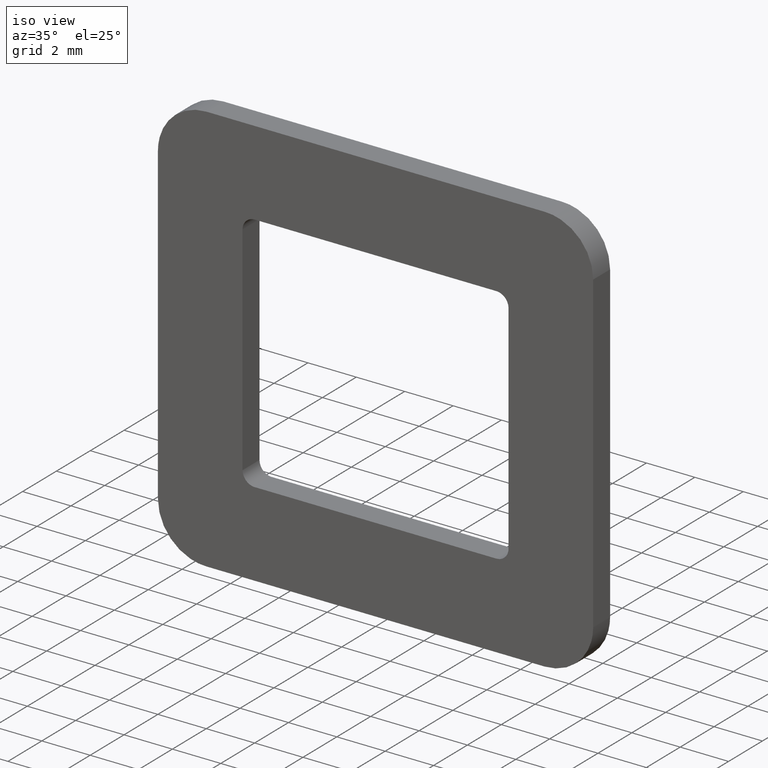
[diagram: clean part render]
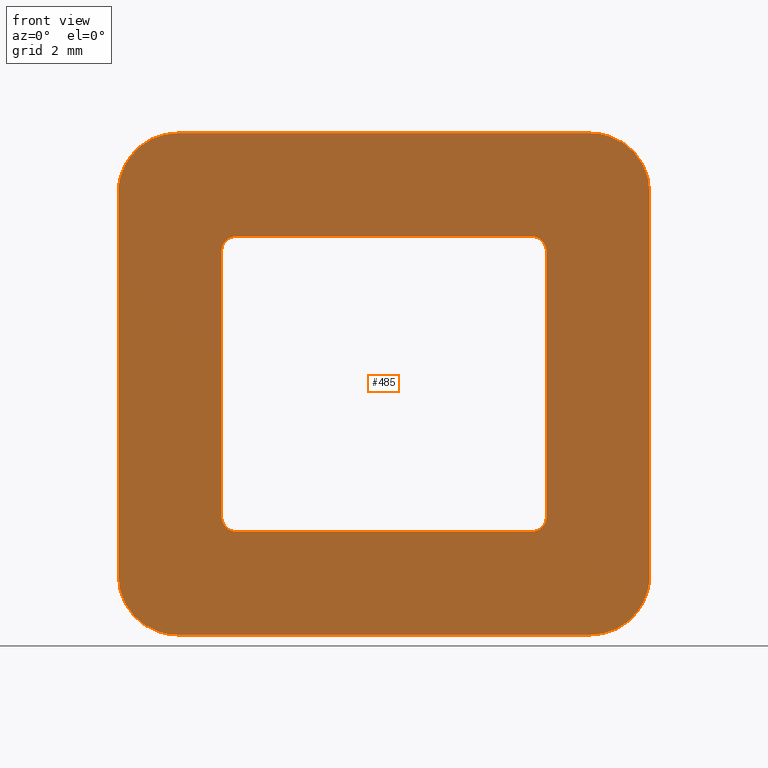
[diagram: tour spotlight — one face highlighted and labeled with its STEP entity id]
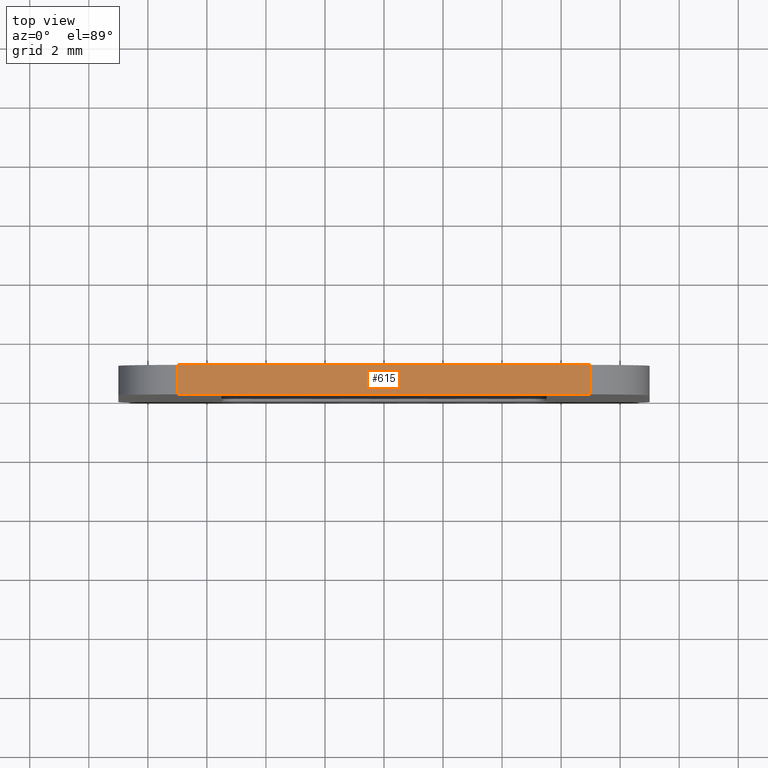
[diagram: tour spotlight — one face highlighted and labeled with its STEP entity id]
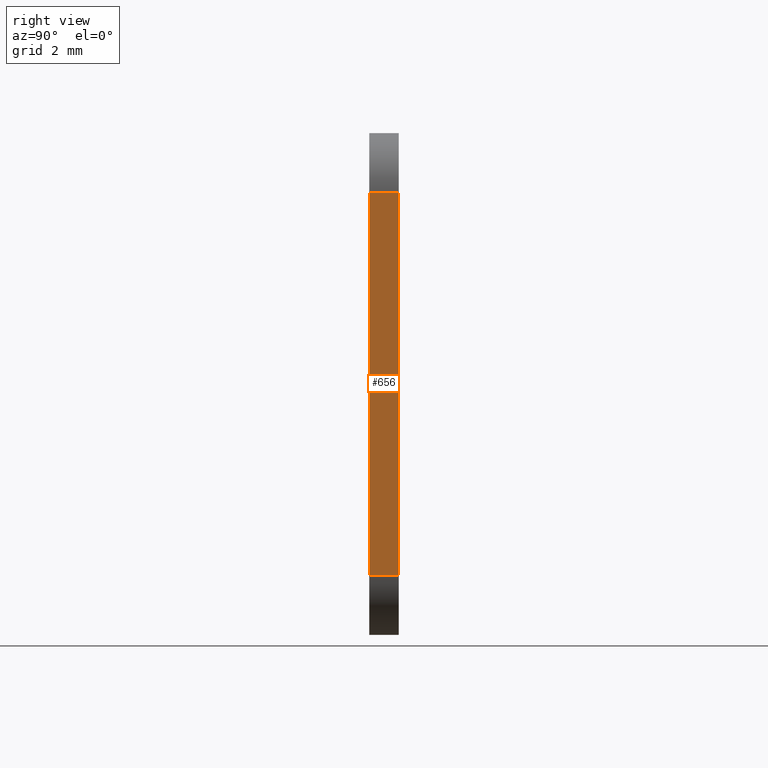
[diagram: tour spotlight — one face highlighted and labeled with its STEP entity id]
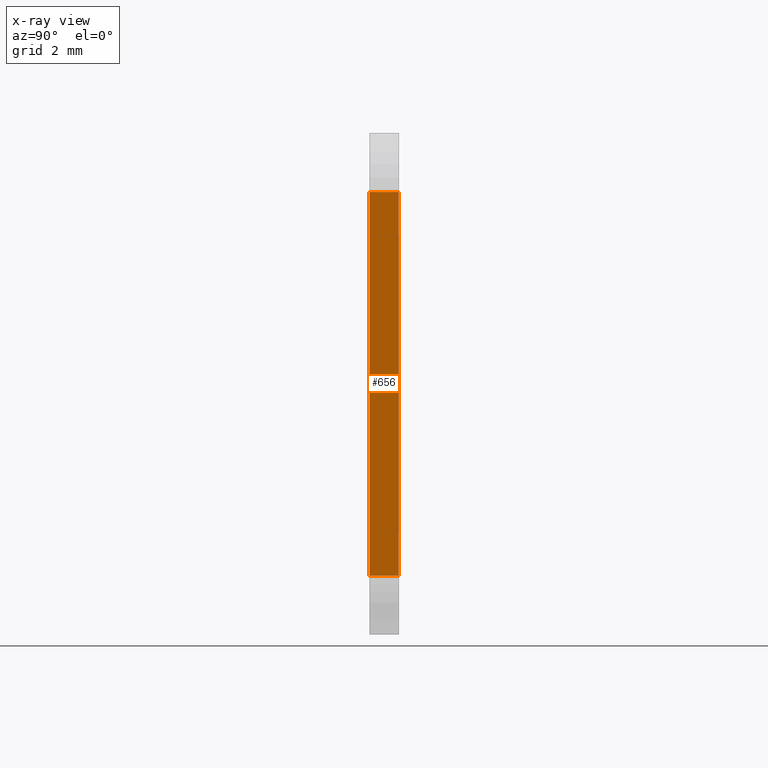
[diagram: x-ray of the same camera — body ghosted, this tour face saturated]
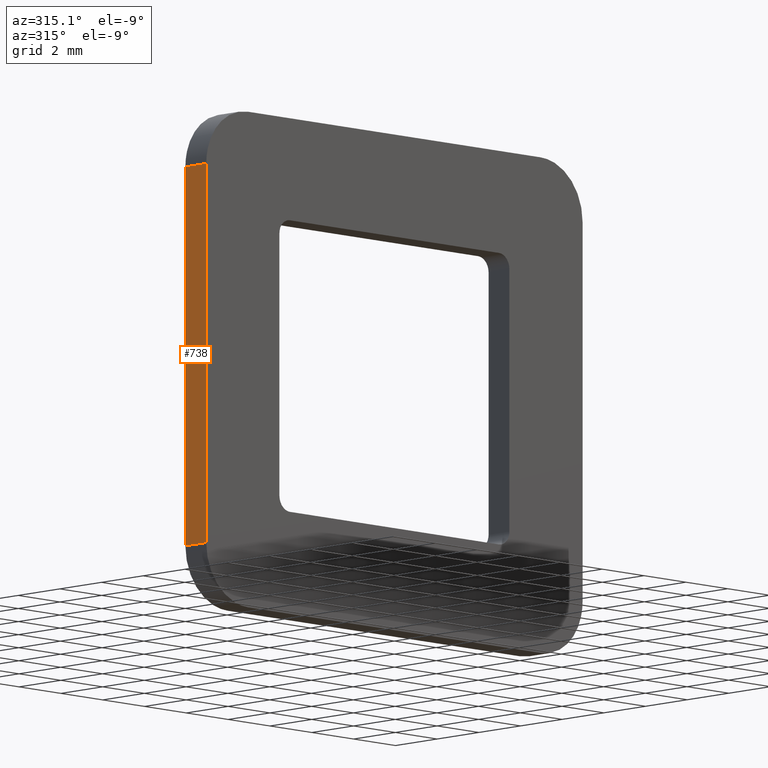
[diagram: tour spotlight — one face highlighted and labeled with its STEP entity id]
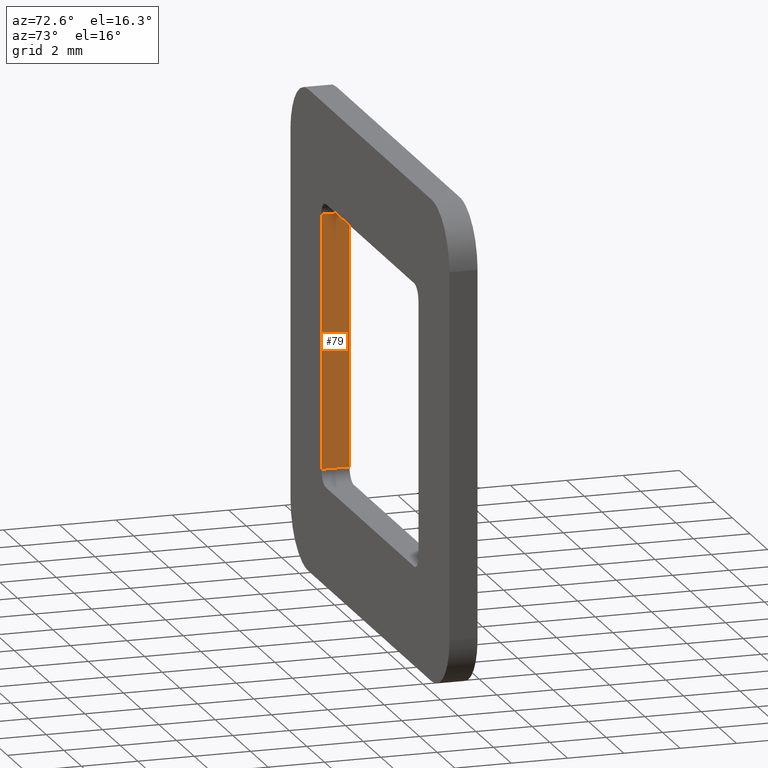
[diagram: tour spotlight — one face highlighted and labeled with its STEP entity id]
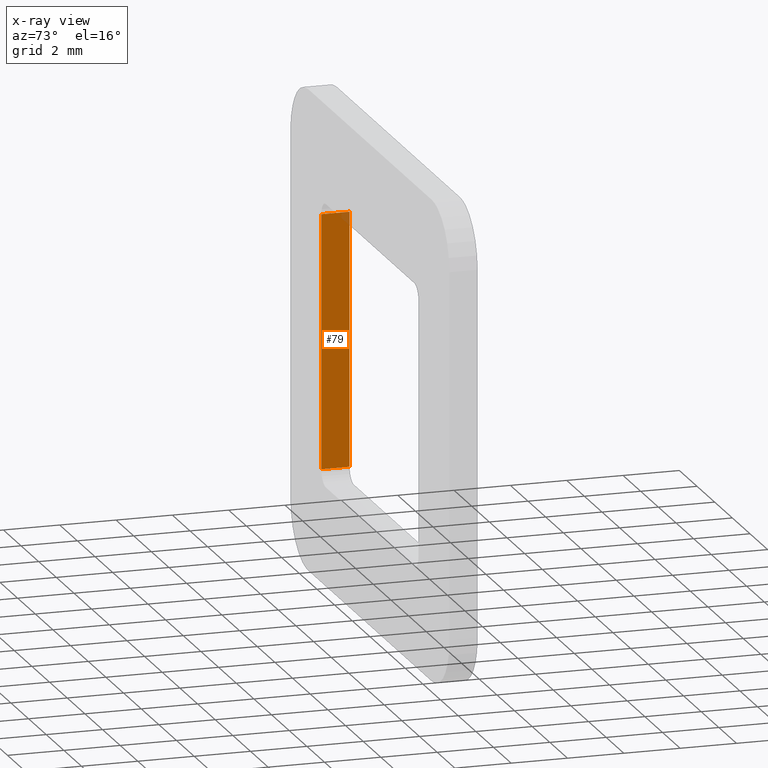
[diagram: x-ray of the same camera — body ghosted, this tour face saturated]
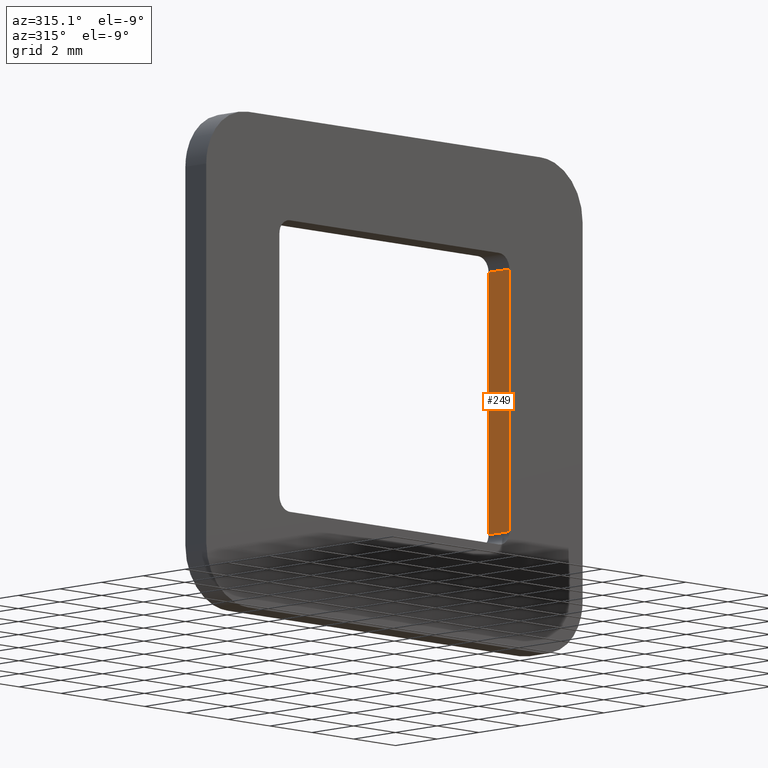
[diagram: tour spotlight — one face highlighted and labeled with its STEP entity id]
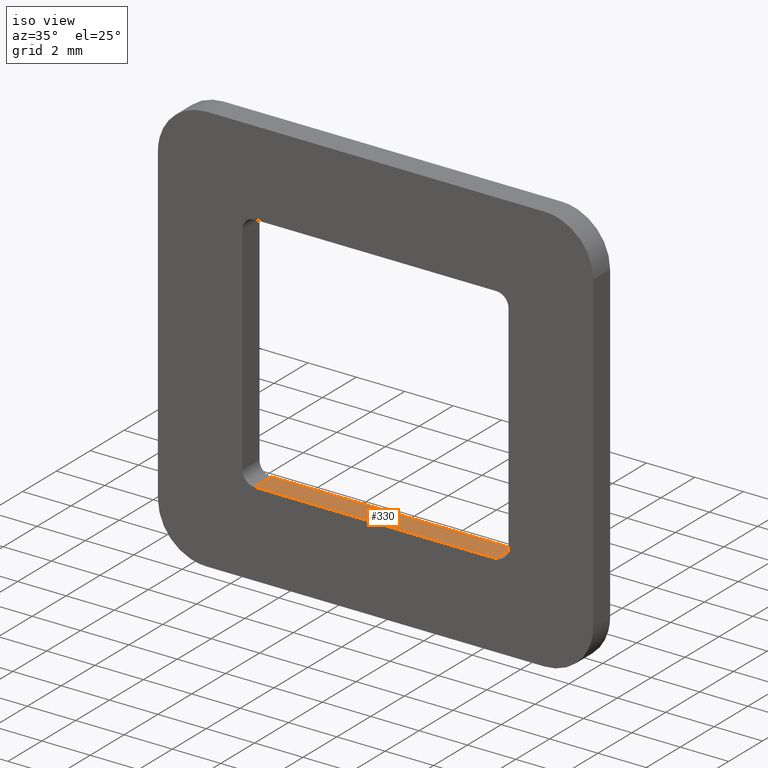
[diagram: tour spotlight — one face highlighted and labeled with its STEP entity id]
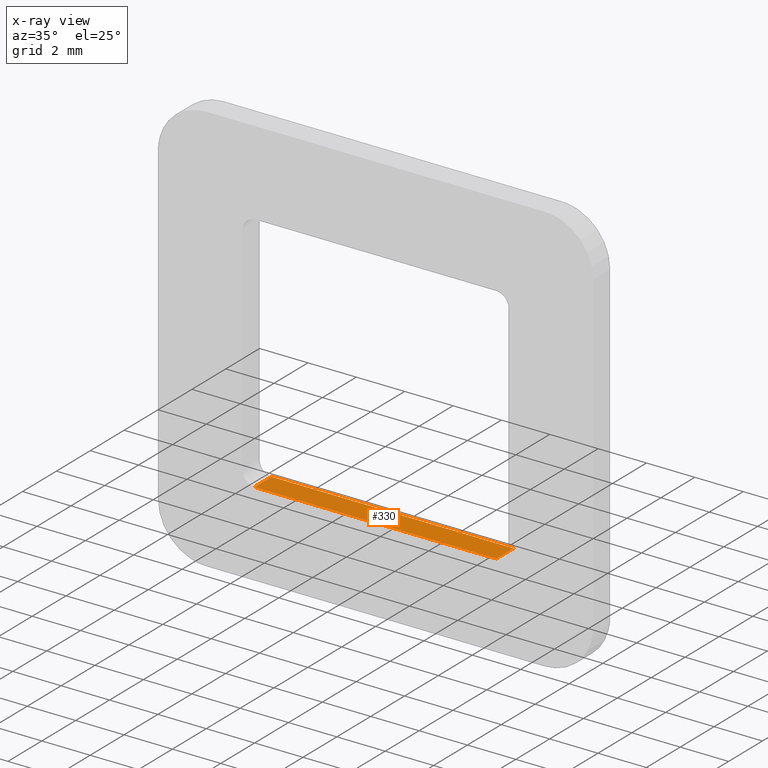
[diagram: x-ray of the same camera — body ghosted, this tour face saturated]
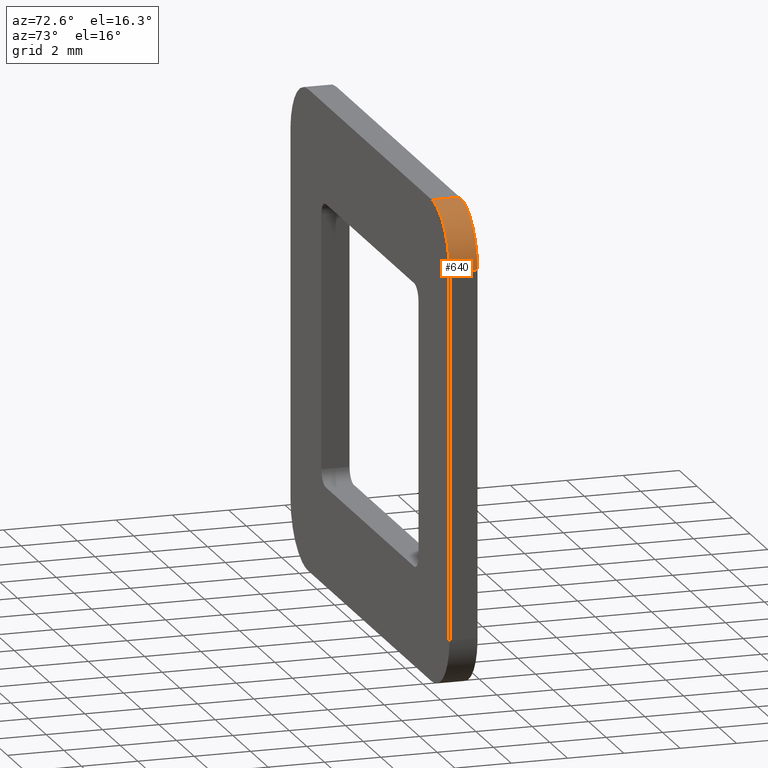
[diagram: tour spotlight — one face highlighted and labeled with its STEP entity id]
A machine part: a face-by-face anatomy tour. The part has 18 B-rep faces; the first image is the clean iso view, then the 8 largest visible faces are spotlighted one at a time (largest first), each with its STEP entity span.

Face 1 — front view, entity #485. In plain terms, the highlighted face is a freeform B-spline surface patch.
Definition (entity closure, byte-faithful):
#49=CARTESIAN_POINT('',(-5.500000000000000,0.0,4.499999956366790));
#50=VERTEX_POINT('',#49);
#51=CARTESIAN_POINT('',(-5.500000000000000,0.0,-4.500000000000000));
#52=VERTEX_POINT('',#51);
#53=CARTESIAN_POINT('',(-5.500000000000000,0.0,4.499999956366790));
#54=CARTESIAN_POINT('',(-5.500000000000000,0.0,-4.500000000000000));
#55=QUASI_UNIFORM_CURVE('',1,(#53,#54),.UNSPECIFIED.,.F.,.U.);
#56=EDGE_CURVE('',#50,#52,#55,.T.);
#94=CARTESIAN_POINT('',(-5.0,0.0,5.0));
#95=VERTEX_POINT('',#94);
#96=CARTESIAN_POINT('',(-5.0,0.0,4.999999999999999));
#97=CARTESIAN_POINT('',(-5.207106793966419,0.0,4.999999999999999));
#98=CARTESIAN_POINT('',(-5.353553406019943,0.0,4.853553375166603));
#99=CARTESIAN_POINT('',(-5.500000018073468,0.0,4.707106750333208));
#100=CARTESIAN_POINT('',(-5.499999999999998,0.0,4.499999956366790));
#108=(BOUNDED_CURVE()B_SPLINE_CURVE(2,(#96,#97,#98,#99,#100),.UNSPECIFIED.,.F.,.U.)B_SPLINE_CURVE_WITH_KNOTS((3,2,3),(0.0,0.500000000000000,1.0),.UNSPECIFIED.)CURVE()GEOMETRIC_REPRESENTATION_ITEM()RATIONAL_B_SPLINE_CURVE((1.0,0.923879524162433,1.0,0.923879524162433,1.0))REPRESENTATION_ITEM(''));
#109=EDGE_CURVE('',#95,#50,#108,.T.);
#142=CARTESIAN_POINT('',(4.999999973820060,0.0,5.0));
#143=VERTEX_POINT('',#142);
#144=CARTESIAN_POINT('',(4.999999973820060,0.0,5.0));
#145=CARTESIAN_POINT('',(-5.0,0.0,5.0));
#146=QUASI_UNIFORM_CURVE('',1,(#144,#145),.UNSPECIFIED.,.F.,.U.);
#147=EDGE_CURVE('',#143,#95,#146,.T.);
#179=CARTESIAN_POINT('',(5.500000000000000,0.0,4.500000000000000));
#180=VERTEX_POINT('',#179);
#181=CARTESIAN_POINT('',(5.500000000000000,0.0,4.500000000000000));
#182=CARTESIAN_POINT('',(5.500000000000000,0.0,4.707106788854474));
#183=CARTESIAN_POINT('',(5.353553381337267,0.0,4.853553399849280));
#184=CARTESIAN_POINT('',(5.207106762674534,0.0,5.000000010844087));
#185=CARTESIAN_POINT('',(4.999999973820060,0.0,4.999999999999999));
#193=(BOUNDED_CURVE()B_SPLINE_CURVE(2,(#181,#182,#183,#184,#185),.UNSPECIFIED.,.F.,.U.)B_SPLINE_CURVE_WITH_KNOTS((3,2,3),(0.0,0.500000000000000,1.0),.UNSPECIFIED.)CURVE()GEOMETRIC_REPRESENTATION_ITEM()RATIONAL_B_SPLINE_CURVE((1.0,0.923879527501972,1.0,0.923879527501972,1.0))REPRESENTATION_ITEM(''));
#194=EDGE_CURVE('',#180,#143,#193,.T.);
#227=CARTESIAN_POINT('',(5.500000000000000,0.0,-4.500000000000000));
#228=VERTEX_POINT('',#227);
#229=CARTESIAN_POINT('',(5.500000000000000,0.0,-4.500000000000000));
#230=CARTESIAN_POINT('',(5.500000000000000,0.0,4.500000000000000));
#231=QUASI_UNIFORM_CURVE('',1,(#229,#230),.UNSPECIFIED.,.F.,.U.);
#232=EDGE_CURVE('',#228,#180,#231,.T.);
#264=CARTESIAN_POINT('',(5.0,0.0,-5.0));
#265=VERTEX_POINT('',#264);
#266=CARTESIAN_POINT('',(5.0,0.0,-4.999999999999999));
#267=CARTESIAN_POINT('',(5.500000000000001,0.0,-4.999999999999998));
#268=CARTESIAN_POINT('',(5.500000000000000,0.0,-4.500000000000000));
#276=(BOUNDED_CURVE()B_SPLINE_CURVE(2,(#266,#267,#268),.UNSPECIFIED.,.F.,.U.)CURVE()GEOMETRIC_REPRESENTATION_ITEM()QUASI_UNIFORM_CURVE()RATIONAL_B_SPLINE_CURVE((1.0,0.707106781186548,1.0))REPRESENTATION_ITEM(''));
#277=EDGE_CURVE('',#265,#228,#276,.T.);
#308=CARTESIAN_POINT('',(-5.0,0.0,-5.0));
#309=VERTEX_POINT('',#308);
#310=CARTESIAN_POINT('',(-5.0,0.0,-5.0));
#311=CARTESIAN_POINT('',(5.0,0.0,-5.0));
#312=QUASI_UNIFORM_CURVE('',1,(#310,#311),.UNSPECIFIED.,.F.,.U.);
#313=EDGE_CURVE('',#309,#265,#312,.T.);
#345=CARTESIAN_POINT('',(-5.500000000000000,0.0,-4.500000000000000));
#346=CARTESIAN_POINT('',(-5.500000000000001,0.0,-4.999999999999998));
#347=CARTESIAN_POINT('',(-5.0,0.0,-4.999999999999999));
#355=(BOUNDED_CURVE()B_SPLINE_CURVE(2,(#345,#346,#347),.UNSPECIFIED.,.F.,.U.)CURVE()GEOMETRIC_REPRESENTATION_ITEM()QUASI_UNIFORM_CURVE()RATIONAL_B_SPLINE_CURVE((1.0,0.707106781186548,1.0))REPRESENTATION_ITEM(''));
#356=EDGE_CURVE('',#52,#309,#355,.T.);
#376=CARTESIAN_POINT('',(-9.899099965112507,0.0,9.349149967050700));
#377=CARTESIAN_POINT('',(9.899100447910129,0.0,9.349149967050700));
#378=CARTESIAN_POINT('',(-9.899099965112507,0.0,-9.349150423026234));
#379=CARTESIAN_POINT('',(9.899100447910129,0.0,-9.349150423026234));
#380=B_SPLINE_SURFACE_WITH_KNOTS('',1,1,((#376,#378),(#377,#379)),.UNSPECIFIED.,.F.,.F.,.U.,(2,2),(2,2),(0.0,19.798200413022631),(0.0,18.698300390076930),.UNSPECIFIED.);
#381=CARTESIAN_POINT('',(-7.0,0.0,8.500000000000000));
#382=VERTEX_POINT('',#381);
#383=CARTESIAN_POINT('',(-9.0,0.0,6.500000000000000));
#384=VERTEX_POINT('',#383);
#385=CARTESIAN_POINT('',(-7.0,0.0,8.500000000000000));
#386=CARTESIAN_POINT('',(-9.000000000000002,0.0,8.500000000000002));
#387=CARTESIAN_POINT('',(-9.000000000000002,0.0,6.500000000000000));
#395=(BOUNDED_CURVE()B_SPLINE_CURVE(2,(#385,#386,#387),.UNSPECIFIED.,.F.,.U.)CURVE()GEOMETRIC_REPRESENTATION_ITEM()QUASI_UNIFORM_CURVE()RATIONAL_B_SPLINE_CURVE((1.0,0.707106781186548,1.0))REPRESENTATION_ITEM(''));
#396=EDGE_CURVE('',#382,#384,#395,.T.);
#397=ORIENTED_EDGE('',*,*,#396,.T.);
#398=CARTESIAN_POINT('',(-9.0,0.0,-6.500000000000000));
#399=VERTEX_POINT('',#398);
#400=CARTESIAN_POINT('',(-9.0,0.0,6.500000000000000));
#401=CARTESIAN_POINT('',(-9.0,0.0,-6.500000000000000));
#402=QUASI_UNIFORM_CURVE('',1,(#400,#401),.UNSPECIFIED.,.F.,.U.);
#403=EDGE_CURVE('',#384,#399,#402,.T.);
#404=ORIENTED_EDGE('',*,*,#403,.T.);
#405=CARTESIAN_POINT('',(-6.999999965093420,0.0,-8.500000000000000));
#406=VERTEX_POINT('',#405);
#407=CARTESIAN_POINT('',(-9.000000000000002,0.0,-6.500000000000000));
#408=CARTESIAN_POINT('',(-9.000000000000002,0.0,-7.328427134970091));
#409=CARTESIAN_POINT('',(-8.414213550031755,0.0,-7.914213574714435));
#410=CARTESIAN_POINT('',(-7.828427100063511,0.0,-8.500000014458779));
#411=CARTESIAN_POINT('',(-6.999999965093421,0.0,-8.499999999999998));
#419=(BOUNDED_CURVE()B_SPLINE_CURVE(2,(#407,#408,#409,#410,#411),.UNSPECIFIED.,.F.,.U.)B_SPLINE_CURVE_WITH_KNOTS((3,2,3),(0.0,0.500000000000000,1.0),.UNSPECIFIED.)CURVE()GEOMETRIC_REPRESENTATION_ITEM()RATIONAL_B_SPLINE_CURVE((1.0,0.923879530841516,1.0,0.923879530841516,1.0))REPRESENTATION_ITEM(''));
#420=EDGE_CURVE('',#399,#406,#419,.T.);
#421=ORIENTED_EDGE('',*,*,#420,.T.);
#422=CARTESIAN_POINT('',(7.0,0.0,-8.500000000000000));
#423=VERTEX_POINT('',#422);
#424=CARTESIAN_POINT('',(-6.999999965093420,0.0,-8.500000000000000));
#425=CARTESIAN_POINT('',(7.0,0.0,-8.500000000000000));
#426=QUASI_UNIFORM_CURVE('',1,(#424,#425),.UNSPECIFIED.,.F.,.U.);
#427=EDGE_CURVE('',#406,#423,#426,.T.);
#428=ORIENTED_EDGE('',*,*,#427,.T.);
#429=CARTESIAN_POINT('',(9.0,0.0,-6.500000000000000));
#430=VERTEX_POINT('',#429);
#431=CARTESIAN_POINT('',(7.0,0.0,-8.500000000000000));
#432=CARTESIAN_POINT('',(9.000000000000002,0.0,-8.500000000000002));
#433=CARTESIAN_POINT('',(9.000000000000002,0.0,-6.500000000000000));
#441=(BOUNDED_CURVE()B_SPLINE_CURVE(2,(#431,#432,#433),.UNSPECIFIED.,.F.,.U.)CURVE()GEOMETRIC_REPRESENTATION_ITEM()QUASI_UNIFORM_CURVE()RATIONAL_B_SPLINE_CURVE((1.0,0.707106781186548,1.0))REPRESENTATION_ITEM(''));
#442=EDGE_CURVE('',#423,#430,#441,.T.);
#443=ORIENTED_EDGE('',*,*,#442,.T.);
#444=CARTESIAN_POINT('',(9.0,0.0,6.500000000000000));
#445=VERTEX_POINT('',#444);
#446=CARTESIAN_POINT('',(9.0,0.0,-6.500000000000000));
#447=CARTESIAN_POINT('',(9.0,0.0,6.500000000000000));
#448=QUASI_UNIFORM_CURVE('',1,(#446,#447),.UNSPECIFIED.,.F.,.U.);
#449=EDGE_CURVE('',#430,#445,#448,.T.);
#450=ORIENTED_EDGE('',*,*,#449,.T.);
#451=CARTESIAN_POINT('',(6.999999895280260,0.0,8.500000000000000));
#452=VERTEX_POINT('',#451);
#453=CARTESIAN_POINT('',(9.000000000000002,0.0,6.500000000000000));
#454=CARTESIAN_POINT('',(9.000000000000002,0.0,7.328427155417892));
#455=CARTESIAN_POINT('',(8.414213525349075,0.0,7.914213599397113));
#456=CARTESIAN_POINT('',(7.828427050698152,0.0,8.500000043376335));
#457=CARTESIAN_POINT('',(6.999999895280261,0.0,8.499999999999996));
#465=(BOUNDED_CURVE()B_SPLINE_CURVE(2,(#453,#454,#455,#456,#457),.UNSPECIFIED.,.F.,.U.)B_SPLINE_CURVE_WITH_KNOTS((3,2,3),(0.0,0.500000000000000,1.0),.UNSPECIFIED.)CURVE()GEOMETRIC_REPRESENTATION_ITEM()RATIONAL_B_SPLINE_CURVE((1.0,0.923879527501973,1.0,0.923879527501973,1.0))REPRESENTATION_ITEM(''));
#466=EDGE_CURVE('',#445,#452,#465,.T.);
#467=ORIENTED_EDGE('',*,*,#466,.T.);
#468=CARTESIAN_POINT('',(6.999999895280260,0.0,8.500000000000000));
#469=CARTESIAN_POINT('',(-7.0,0.0,8.500000000000000));
#470=QUASI_UNIFORM_CURVE('',1,(#468,#469),.UNSPECIFIED.,.F.,.U.);
#471=EDGE_CURVE('',#452,#382,#470,.T.);
#472=ORIENTED_EDGE('',*,*,#471,.T.);
#473=EDGE_LOOP('',(#397,#404,#421,#428,#443,#450,#467,#472));
#474=FACE_OUTER_BOUND('',#473,.T.);
#475=ORIENTED_EDGE('',*,*,#356,.F.);
#476=ORIENTED_EDGE('',*,*,#56,.F.);
#477=ORIENTED_EDGE('',*,*,#109,.F.);
#478=ORIENTED_EDGE('',*,*,#147,.F.);
#479=ORIENTED_EDGE('',*,*,#194,.F.);
#480=ORIENTED_EDGE('',*,*,#232,.F.);
#481=ORIENTED_EDGE('',*,*,#277,.F.);
#482=ORIENTED_EDGE('',*,*,#313,.F.);
#483=EDGE_LOOP('',(#475,#476,#477,#478,#479,#480,#481,#482));
#484=FACE_BOUND('',#483,.T.);
#485=ADVANCED_FACE('',(#474,#484),#380,.F.);

Face 2 — top view, entity #615. In plain terms, the highlighted face is a freeform B-spline surface patch.
Definition (entity closure, byte-faithful):
#381=CARTESIAN_POINT('',(-7.0,0.0,8.500000000000000));
#382=VERTEX_POINT('',#381);
#451=CARTESIAN_POINT('',(6.999999895280260,0.0,8.500000000000000));
#452=VERTEX_POINT('',#451);
#468=CARTESIAN_POINT('',(6.999999895280260,0.0,8.500000000000000));
#469=CARTESIAN_POINT('',(-7.0,0.0,8.500000000000000));
#470=QUASI_UNIFORM_CURVE('',1,(#468,#469),.UNSPECIFIED.,.F.,.U.);
#471=EDGE_CURVE('',#452,#382,#470,.T.);
#491=CARTESIAN_POINT('',(-7.0,1.0,8.500000000000000));
#492=VERTEX_POINT('',#491);
#508=CARTESIAN_POINT('',(6.999999895280260,1.0,8.500000000000000));
#509=VERTEX_POINT('',#508);
#510=CARTESIAN_POINT('',(6.999999895280260,1.0,8.500000000000000));
#511=CARTESIAN_POINT('',(-7.0,1.0,8.500000000000000));
#512=QUASI_UNIFORM_CURVE('',1,(#510,#511),.UNSPECIFIED.,.F.,.U.);
#513=EDGE_CURVE('',#509,#492,#512,.T.);
#596=CARTESIAN_POINT('',(-7.699299967634536,-0.049949998061806,8.500000000000000));
#597=CARTESIAN_POINT('',(7.699300238424049,-0.049949998061806,8.500000000000000));
#598=CARTESIAN_POINT('',(-7.699299967634536,1.049950024883896,8.500000000000000));
#599=CARTESIAN_POINT('',(7.699300238424049,1.049950024883896,8.500000000000000));
#600=B_SPLINE_SURFACE_WITH_KNOTS('',1,1,((#596,#598),(#597,#599)),.UNSPECIFIED.,.F.,.F.,.U.,(2,2),(2,2),(0.0,15.398600206058591),(0.041708334948495,0.958291687403247),.UNSPECIFIED.);
#601=ORIENTED_EDGE('',*,*,#471,.F.);
#602=CARTESIAN_POINT('',(6.999999895280260,1.0,8.500000000000000));
#603=CARTESIAN_POINT('',(6.999999895280260,0.0,8.500000000000000));
#604=QUASI_UNIFORM_CURVE('',1,(#602,#603),.UNSPECIFIED.,.F.,.U.);
#605=EDGE_CURVE('',#509,#452,#604,.T.);
#606=ORIENTED_EDGE('',*,*,#605,.F.);
#607=ORIENTED_EDGE('',*,*,#513,.T.);
#608=CARTESIAN_POINT('',(-7.0,1.0,8.500000000000000));
#609=CARTESIAN_POINT('',(-7.0,0.0,8.500000000000000));
#610=QUASI_UNIFORM_CURVE('',1,(#608,#609),.UNSPECIFIED.,.F.,.U.);
#611=EDGE_CURVE('',#492,#382,#610,.T.);
#612=ORIENTED_EDGE('',*,*,#611,.T.);
#613=EDGE_LOOP('',(#601,#606,#607,#612));
#614=FACE_OUTER_BOUND('',#613,.T.);
#615=ADVANCED_FACE('',(#614),#600,.T.);

Face 3 — right view, entity #656. An x-ray twin of the same camera follows (body ghosted, this face saturated) — the face is partly hidden behind the body. In plain terms, the highlighted face is a freeform B-spline surface patch.
Definition (entity closure, byte-faithful):
#429=CARTESIAN_POINT('',(9.0,0.0,-6.500000000000000));
#430=VERTEX_POINT('',#429);
#444=CARTESIAN_POINT('',(9.0,0.0,6.500000000000000));
#445=VERTEX_POINT('',#444);
#446=CARTESIAN_POINT('',(9.0,0.0,-6.500000000000000));
#447=CARTESIAN_POINT('',(9.0,0.0,6.500000000000000));
#448=QUASI_UNIFORM_CURVE('',1,(#446,#447),.UNSPECIFIED.,.F.,.U.);
#449=EDGE_CURVE('',#430,#445,#448,.T.);
#515=CARTESIAN_POINT('',(9.0,1.0,6.500000000000000));
#516=VERTEX_POINT('',#515);
#532=CARTESIAN_POINT('',(9.0,1.0,-6.500000000000000));
#533=VERTEX_POINT('',#532);
#534=CARTESIAN_POINT('',(9.0,1.0,-6.500000000000000));
#535=CARTESIAN_POINT('',(9.0,1.0,6.500000000000000));
#536=QUASI_UNIFORM_CURVE('',1,(#534,#535),.UNSPECIFIED.,.F.,.U.);
#537=EDGE_CURVE('',#533,#516,#536,.T.);
#631=CARTESIAN_POINT('',(9.0,1.0,6.500000000000000));
#632=CARTESIAN_POINT('',(9.0,0.0,6.500000000000000));
#633=QUASI_UNIFORM_CURVE('',1,(#631,#632),.UNSPECIFIED.,.F.,.U.);
#634=EDGE_CURVE('',#516,#445,#633,.T.);
#641=CARTESIAN_POINT('',(9.0,-0.049949998061806,7.149349974803478));
#642=CARTESIAN_POINT('',(9.0,-0.049949998061806,-7.149350323490650));
#643=CARTESIAN_POINT('',(9.0,1.049950024883896,7.149349974803478));
#644=CARTESIAN_POINT('',(9.0,1.049950024883896,-7.149350323490651));
#645=B_SPLINE_SURFACE_WITH_KNOTS('',1,1,((#641,#643),(#642,#644)),.UNSPECIFIED.,.F.,.F.,.U.,(2,2),(2,2),(0.0,14.298700298294129),(0.041708334948495,0.958291687403247),.UNSPECIFIED.);
#646=ORIENTED_EDGE('',*,*,#449,.F.);
#647=CARTESIAN_POINT('',(9.0,1.0,-6.500000000000000));
#648=CARTESIAN_POINT('',(9.0,0.0,-6.500000000000000));
#649=QUASI_UNIFORM_CURVE('',1,(#647,#648),.UNSPECIFIED.,.F.,.U.);
#650=EDGE_CURVE('',#533,#430,#649,.T.);
#651=ORIENTED_EDGE('',*,*,#650,.F.);
#652=ORIENTED_EDGE('',*,*,#537,.T.);
#653=ORIENTED_EDGE('',*,*,#634,.T.);
#654=EDGE_LOOP('',(#646,#651,#652,#653));
#655=FACE_OUTER_BOUND('',#654,.T.);
#656=ADVANCED_FACE('',(#655),#645,.T.);

Face 4 — auxiliary view, entity #738. In plain terms, the highlighted face is a freeform B-spline surface patch.
Definition (entity closure, byte-faithful):
#383=CARTESIAN_POINT('',(-9.0,0.0,6.500000000000000));
#384=VERTEX_POINT('',#383);
#398=CARTESIAN_POINT('',(-9.0,0.0,-6.500000000000000));
#399=VERTEX_POINT('',#398);
#400=CARTESIAN_POINT('',(-9.0,0.0,6.500000000000000));
#401=CARTESIAN_POINT('',(-9.0,0.0,-6.500000000000000));
#402=QUASI_UNIFORM_CURVE('',1,(#400,#401),.UNSPECIFIED.,.F.,.U.);
#403=EDGE_CURVE('',#384,#399,#402,.T.);
#493=CARTESIAN_POINT('',(-9.0,1.0,6.500000000000000));
#494=VERTEX_POINT('',#493);
#561=CARTESIAN_POINT('',(-9.0,1.0,-6.500000000000000));
#562=VERTEX_POINT('',#561);
#578=CARTESIAN_POINT('',(-9.0,1.0,6.500000000000000));
#579=CARTESIAN_POINT('',(-9.0,1.0,-6.500000000000000));
#580=QUASI_UNIFORM_CURVE('',1,(#578,#579),.UNSPECIFIED.,.F.,.U.);
#581=EDGE_CURVE('',#494,#562,#580,.T.);
#713=CARTESIAN_POINT('',(-9.0,1.0,-6.500000000000000));
#714=CARTESIAN_POINT('',(-9.0,0.0,-6.500000000000000));
#715=QUASI_UNIFORM_CURVE('',1,(#713,#714),.UNSPECIFIED.,.F.,.U.);
#716=EDGE_CURVE('',#562,#399,#715,.T.);
#723=CARTESIAN_POINT('',(-9.0,-0.049949998061806,-7.149349974803478));
#724=CARTESIAN_POINT('',(-9.0,-0.049949998061806,7.149350323490650));
#725=CARTESIAN_POINT('',(-9.0,1.049950024883896,-7.149349974803478));
#726=CARTESIAN_POINT('',(-9.0,1.049950024883896,7.149350323490651));
#727=B_SPLINE_SURFACE_WITH_KNOTS('',1,1,((#723,#725),(#724,#726)),.UNSPECIFIED.,.F.,.F.,.U.,(2,2),(2,2),(0.0,14.298700298294129),(0.041708334948495,0.958291687403247),.UNSPECIFIED.);
#728=ORIENTED_EDGE('',*,*,#403,.F.);
#729=CARTESIAN_POINT('',(-9.0,1.0,6.500000000000000));
#730=CARTESIAN_POINT('',(-9.0,0.0,6.500000000000000));
#731=QUASI_UNIFORM_CURVE('',1,(#729,#730),.UNSPECIFIED.,.F.,.U.);
#732=EDGE_CURVE('',#494,#384,#731,.T.);
#733=ORIENTED_EDGE('',*,*,#732,.F.);
#734=ORIENTED_EDGE('',*,*,#581,.T.);
#735=ORIENTED_EDGE('',*,*,#716,.T.);
#736=EDGE_LOOP('',(#728,#733,#734,#735));
#737=FACE_OUTER_BOUND('',#736,.T.);
#738=ADVANCED_FACE('',(#737),#727,.T.);

Face 5 — auxiliary view, entity #79. An x-ray twin of the same camera follows (body ghosted, this face saturated) — the face is partly hidden behind the body. In plain terms, the highlighted face is a freeform B-spline surface patch.
Definition (entity closure, byte-faithful):
#44=CARTESIAN_POINT('',(-5.500000000000000,-0.049949998061806,-4.949549980376776));
#45=CARTESIAN_POINT('',(-5.500000000000000,-0.049949998061806,4.949550178142376));
#46=CARTESIAN_POINT('',(-5.500000000000000,1.049950024883896,-4.949549980376776));
#47=CARTESIAN_POINT('',(-5.500000000000000,1.049950024883896,4.949550178142376));
#48=B_SPLINE_SURFACE_WITH_KNOTS('',1,1,((#44,#46),(#45,#47)),.UNSPECIFIED.,.F.,.F.,.U.,(2,2),(2,2),(0.0,9.899100158519151),(0.041708334948495,0.958291687403247),.UNSPECIFIED.);
#49=CARTESIAN_POINT('',(-5.500000000000000,0.0,4.499999956366790));
#50=VERTEX_POINT('',#49);
#51=CARTESIAN_POINT('',(-5.500000000000000,0.0,-4.500000000000000));
#52=VERTEX_POINT('',#51);
#53=CARTESIAN_POINT('',(-5.500000000000000,0.0,4.499999956366790));
#54=CARTESIAN_POINT('',(-5.500000000000000,0.0,-4.500000000000000));
#55=QUASI_UNIFORM_CURVE('',1,(#53,#54),.UNSPECIFIED.,.F.,.U.);
#56=EDGE_CURVE('',#50,#52,#55,.T.);
#57=ORIENTED_EDGE('',*,*,#56,.T.);
#58=CARTESIAN_POINT('',(-5.500000000000000,1.0,-4.500000000000000));
#59=VERTEX_POINT('',#58);
#60=CARTESIAN_POINT('',(-5.500000000000000,1.0,-4.500000000000000));
#61=CARTESIAN_POINT('',(-5.500000000000000,0.0,-4.500000000000000));
#62=QUASI_UNIFORM_CURVE('',1,(#60,#61),.UNSPECIFIED.,.F.,.U.);
#63=EDGE_CURVE('',#59,#52,#62,.T.);
#64=ORIENTED_EDGE('',*,*,#63,.F.);
#65=CARTESIAN_POINT('',(-5.500000000000000,1.0,4.499999956366790));
#66=VERTEX_POINT('',#65);
#67=CARTESIAN_POINT('',(-5.500000000000000,1.0,4.499999956366790));
#68=CARTESIAN_POINT('',(-5.500000000000000,1.0,-4.500000000000000));
#69=QUASI_UNIFORM_CURVE('',1,(#67,#68),.UNSPECIFIED.,.F.,.U.);
#70=EDGE_CURVE('',#66,#59,#69,.T.);
#71=ORIENTED_EDGE('',*,*,#70,.F.);
#72=CARTESIAN_POINT('',(-5.500000000000000,1.0,4.499999956366790));
#73=CARTESIAN_POINT('',(-5.500000000000000,0.0,4.499999956366790));
#74=QUASI_UNIFORM_CURVE('',1,(#72,#73),.UNSPECIFIED.,.F.,.U.);
#75=EDGE_CURVE('',#66,#50,#74,.T.);
#76=ORIENTED_EDGE('',*,*,#75,.T.);
#77=EDGE_LOOP('',(#57,#64,#71,#76));
#78=FACE_OUTER_BOUND('',#77,.T.);
#79=ADVANCED_FACE('',(#78),#48,.F.);

Face 6 — auxiliary view, entity #249. In plain terms, the highlighted face is a freeform B-spline surface patch.
Definition (entity closure, byte-faithful):
#179=CARTESIAN_POINT('',(5.500000000000000,0.0,4.500000000000000));
#180=VERTEX_POINT('',#179);
#197=CARTESIAN_POINT('',(5.500000000000000,1.0,4.500000000000000));
#198=VERTEX_POINT('',#197);
#214=CARTESIAN_POINT('',(5.500000000000000,1.0,4.500000000000000));
#215=CARTESIAN_POINT('',(5.500000000000000,0.0,4.500000000000000));
#216=QUASI_UNIFORM_CURVE('',1,(#214,#215),.UNSPECIFIED.,.F.,.U.);
#217=EDGE_CURVE('',#198,#180,#216,.T.);
#222=CARTESIAN_POINT('',(5.500000000000000,-0.049949998061806,4.949549982556253));
#223=CARTESIAN_POINT('',(5.500000000000000,-0.049949998061806,-4.949550223955065));
#224=CARTESIAN_POINT('',(5.500000000000000,1.049950024883896,4.949549982556253));
#225=CARTESIAN_POINT('',(5.500000000000000,1.049950024883896,-4.949550223955065));
#226=B_SPLINE_SURFACE_WITH_KNOTS('',1,1,((#222,#224),(#223,#225)),.UNSPECIFIED.,.F.,.F.,.U.,(2,2),(2,2),(0.0,9.899100206511317),(0.041708334948495,0.958291687403247),.UNSPECIFIED.);
#227=CARTESIAN_POINT('',(5.500000000000000,0.0,-4.500000000000000));
#228=VERTEX_POINT('',#227);
#229=CARTESIAN_POINT('',(5.500000000000000,0.0,-4.500000000000000));
#230=CARTESIAN_POINT('',(5.500000000000000,0.0,4.500000000000000));
#231=QUASI_UNIFORM_CURVE('',1,(#229,#230),.UNSPECIFIED.,.F.,.U.);
#232=EDGE_CURVE('',#228,#180,#231,.T.);
#233=ORIENTED_EDGE('',*,*,#232,.T.);
#234=ORIENTED_EDGE('',*,*,#217,.F.);
#235=CARTESIAN_POINT('',(5.500000000000000,1.0,-4.500000000000000));
#236=VERTEX_POINT('',#235);
#237=CARTESIAN_POINT('',(5.500000000000000,1.0,-4.500000000000000));
#238=CARTESIAN_POINT('',(5.500000000000000,1.0,4.500000000000000));
#239=QUASI_UNIFORM_CURVE('',1,(#237,#238),.UNSPECIFIED.,.F.,.U.);
#240=EDGE_CURVE('',#236,#198,#239,.T.);
#241=ORIENTED_EDGE('',*,*,#240,.F.);
#242=CARTESIAN_POINT('',(5.500000000000000,1.0,-4.500000000000000));
#243=CARTESIAN_POINT('',(5.500000000000000,0.0,-4.500000000000000));
#244=QUASI_UNIFORM_CURVE('',1,(#242,#243),.UNSPECIFIED.,.F.,.U.);
#245=EDGE_CURVE('',#236,#228,#244,.T.);
#246=ORIENTED_EDGE('',*,*,#245,.T.);
#247=EDGE_LOOP('',(#233,#234,#241,#246));
#248=FACE_OUTER_BOUND('',#247,.T.);
#249=ADVANCED_FACE('',(#248),#226,.F.);

Face 7 — iso view, entity #330. An x-ray twin of the same camera follows (body ghosted, this face saturated) — the face is partly hidden behind the body. In plain terms, the highlighted face is a freeform B-spline surface patch.
Definition (entity closure, byte-faithful):
#264=CARTESIAN_POINT('',(5.0,0.0,-5.0));
#265=VERTEX_POINT('',#264);
#280=CARTESIAN_POINT('',(5.0,1.0,-5.0));
#281=VERTEX_POINT('',#280);
#295=CARTESIAN_POINT('',(5.0,1.0,-5.0));
#296=CARTESIAN_POINT('',(5.0,0.0,-5.0));
#297=QUASI_UNIFORM_CURVE('',1,(#295,#296),.UNSPECIFIED.,.F.,.U.);
#298=EDGE_CURVE('',#281,#265,#297,.T.);
#303=CARTESIAN_POINT('',(5.499499980618060,-0.049949998061806,-5.0));
#304=CARTESIAN_POINT('',(-5.499500248838961,-0.049949998061806,-5.0));
#305=CARTESIAN_POINT('',(5.499499980618060,1.049950024883896,-5.0));
#306=CARTESIAN_POINT('',(-5.499500248838961,1.049950024883896,-5.0));
#307=B_SPLINE_SURFACE_WITH_KNOTS('',1,1,((#303,#305),(#304,#306)),.UNSPECIFIED.,.F.,.F.,.U.,(2,2),(2,2),(0.0,10.999000229457019),(0.041708334948495,0.958291687403247),.UNSPECIFIED.);
#308=CARTESIAN_POINT('',(-5.0,0.0,-5.0));
#309=VERTEX_POINT('',#308);
#310=CARTESIAN_POINT('',(-5.0,0.0,-5.0));
#311=CARTESIAN_POINT('',(5.0,0.0,-5.0));
#312=QUASI_UNIFORM_CURVE('',1,(#310,#311),.UNSPECIFIED.,.F.,.U.);
#313=EDGE_CURVE('',#309,#265,#312,.T.);
#314=ORIENTED_EDGE('',*,*,#313,.T.);
#315=ORIENTED_EDGE('',*,*,#298,.F.);
#316=CARTESIAN_POINT('',(-5.0,1.0,-5.0));
#317=VERTEX_POINT('',#316);
#318=CARTESIAN_POINT('',(-5.0,1.0,-5.0));
#319=CARTESIAN_POINT('',(5.0,1.0,-5.0));
#320=QUASI_UNIFORM_CURVE('',1,(#318,#319),.UNSPECIFIED.,.F.,.U.);
#321=EDGE_CURVE('',#317,#281,#320,.T.);
#322=ORIENTED_EDGE('',*,*,#321,.F.);
#323=CARTESIAN_POINT('',(-5.0,1.0,-5.0));
#324=CARTESIAN_POINT('',(-5.0,0.0,-5.0));
#325=QUASI_UNIFORM_CURVE('',1,(#323,#324),.UNSPECIFIED.,.F.,.U.);
#326=EDGE_CURVE('',#317,#309,#325,.T.);
#327=ORIENTED_EDGE('',*,*,#326,.T.);
#328=EDGE_LOOP('',(#314,#315,#322,#327));
#329=FACE_OUTER_BOUND('',#328,.T.);
#330=ADVANCED_FACE('',(#329),#307,.F.);

Face 8 — auxiliary view, entity #640. In plain terms, the highlighted face is a freeform B-spline surface patch.
Definition (entity closure, byte-faithful):
#444=CARTESIAN_POINT('',(9.0,0.0,6.500000000000000));
#445=VERTEX_POINT('',#444);
#451=CARTESIAN_POINT('',(6.999999895280260,0.0,8.500000000000000));
#452=VERTEX_POINT('',#451);
#453=CARTESIAN_POINT('',(9.000000000000002,0.0,6.500000000000000));
#454=CARTESIAN_POINT('',(9.000000000000002,0.0,7.328427155417892));
#455=CARTESIAN_POINT('',(8.414213525349075,0.0,7.914213599397113));
#456=CARTESIAN_POINT('',(7.828427050698152,0.0,8.500000043376335));
#457=CARTESIAN_POINT('',(6.999999895280261,0.0,8.499999999999996));
#465=(BOUNDED_CURVE()B_SPLINE_CURVE(2,(#453,#454,#455,#456,#457),.UNSPECIFIED.,.F.,.U.)B_SPLINE_CURVE_WITH_KNOTS((3,2,3),(0.0,0.500000000000000,1.0),.UNSPECIFIED.)CURVE()GEOMETRIC_REPRESENTATION_ITEM()RATIONAL_B_SPLINE_CURVE((1.0,0.923879527501973,1.0,0.923879527501973,1.0))REPRESENTATION_ITEM(''));
#466=EDGE_CURVE('',#445,#452,#465,.T.);
#508=CARTESIAN_POINT('',(6.999999895280260,1.0,8.500000000000000));
#509=VERTEX_POINT('',#508);
#515=CARTESIAN_POINT('',(9.0,1.0,6.500000000000000));
#516=VERTEX_POINT('',#515);
#517=CARTESIAN_POINT('',(9.000000000000002,1.0,6.500000000000000));
#518=CARTESIAN_POINT('',(9.000000000000002,1.0,7.328427155417892));
#519=CARTESIAN_POINT('',(8.414213525349075,1.0,7.914213599397113));
#520=CARTESIAN_POINT('',(7.828427050698152,1.0,8.500000043376335));
#521=CARTESIAN_POINT('',(6.999999895280261,1.0,8.499999999999996));
#529=(BOUNDED_CURVE()B_SPLINE_CURVE(2,(#517,#518,#519,#520,#521),.UNSPECIFIED.,.F.,.U.)B_SPLINE_CURVE_WITH_KNOTS((3,2,3),(0.0,0.500000000000000,1.0),.UNSPECIFIED.)CURVE()GEOMETRIC_REPRESENTATION_ITEM()RATIONAL_B_SPLINE_CURVE((1.0,0.923879527501973,1.0,0.923879527501973,1.0))REPRESENTATION_ITEM(''));
#530=EDGE_CURVE('',#516,#509,#529,.T.);
#602=CARTESIAN_POINT('',(6.999999895280260,1.0,8.500000000000000));
#603=CARTESIAN_POINT('',(6.999999895280260,0.0,8.500000000000000));
#604=QUASI_UNIFORM_CURVE('',1,(#602,#603),.UNSPECIFIED.,.F.,.U.);
#605=EDGE_CURVE('',#509,#452,#604,.T.);
#616=CARTESIAN_POINT('',(6.912761225269327,1.025000000000000,8.498096443163714));
#617=CARTESIAN_POINT('',(6.912761225269327,-0.025625000000000,8.498096443163714));
#618=CARTESIAN_POINT('',(9.152120528918072,1.025000000000000,8.595868981871968));
#619=CARTESIAN_POINT('',(9.152120528918072,-0.025625000000000,8.595868981871968));
#620=CARTESIAN_POINT('',(8.995085826463834,1.025000000000000,6.359883815912953));
#621=CARTESIAN_POINT('',(8.995085826463834,-0.025625000000000,6.359883815912953));
#629=(BOUNDED_SURFACE()B_SPLINE_SURFACE(1,2,((#616,#618,#620),(#617,#619,#621)),.UNSPECIFIED.,.F.,.F.,.U.)B_SPLINE_SURFACE_WITH_KNOTS((2,2),(3,3),(0.0,1.0),(0.0,3.583485079683971),.UNSPECIFIED.)GEOMETRIC_REPRESENTATION_ITEM()RATIONAL_B_SPLINE_SURFACE(((1.0,0.664513898535122,0.996233561259061),(1.0,0.664513898535122,0.996233561259061)))REPRESENTATION_ITEM('')SURFACE());
#630=ORIENTED_EDGE('',*,*,#466,.F.);
#631=CARTESIAN_POINT('',(9.0,1.0,6.500000000000000));
#632=CARTESIAN_POINT('',(9.0,0.0,6.500000000000000));
#633=QUASI_UNIFORM_CURVE('',1,(#631,#632),.UNSPECIFIED.,.F.,.U.);
#634=EDGE_CURVE('',#516,#445,#633,.T.);
#635=ORIENTED_EDGE('',*,*,#634,.F.);
#636=ORIENTED_EDGE('',*,*,#530,.T.);
#637=ORIENTED_EDGE('',*,*,#605,.T.);
#638=EDGE_LOOP('',(#630,#635,#636,#637));
#639=FACE_OUTER_BOUND('',#638,.T.);
#640=ADVANCED_FACE('',(#639),#629,.T.);